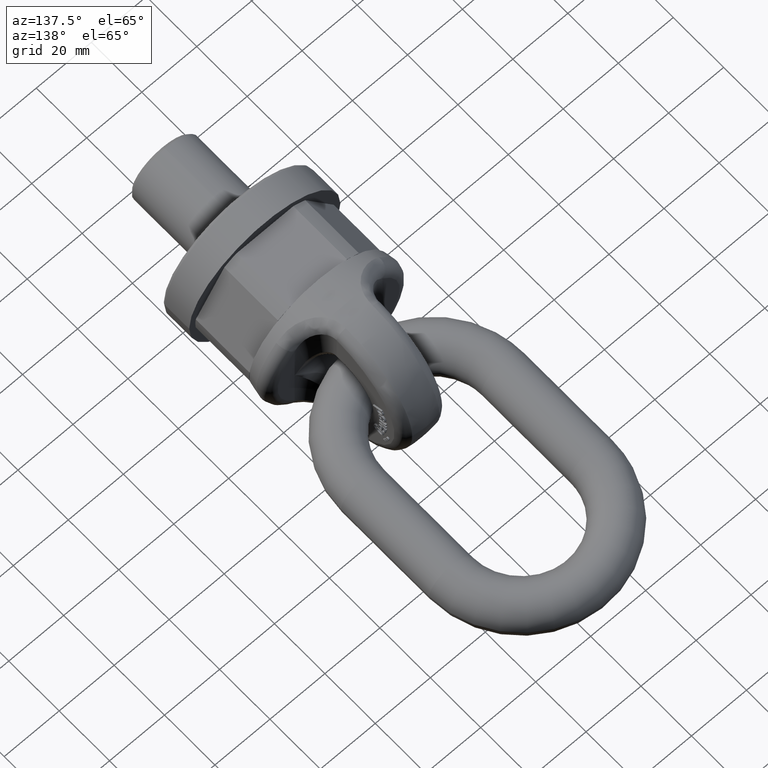
[diagram: clean part render]
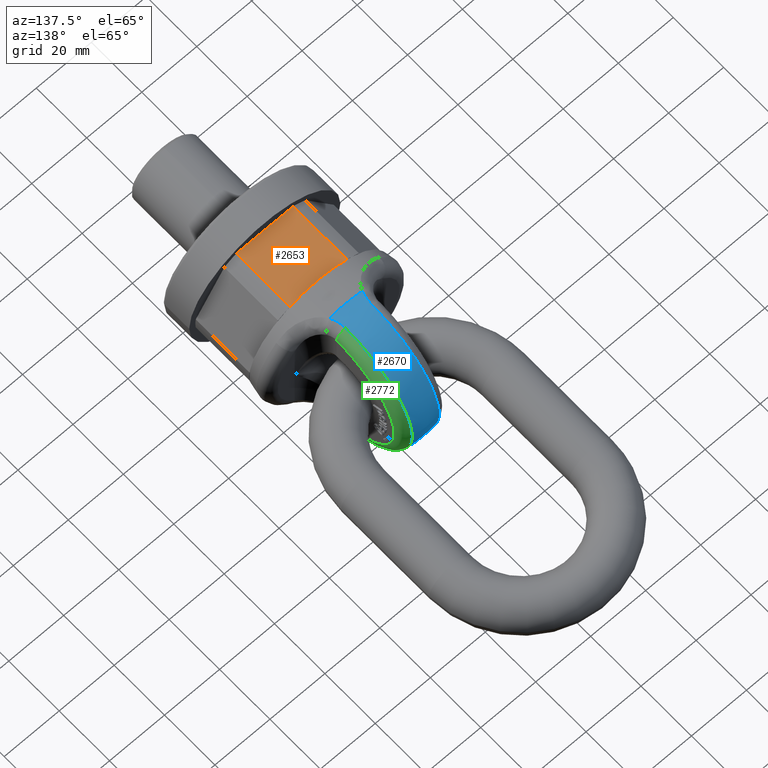
[diagram: same view with three faces highlighted in distinct colors, each labeled with its STEP entity id]
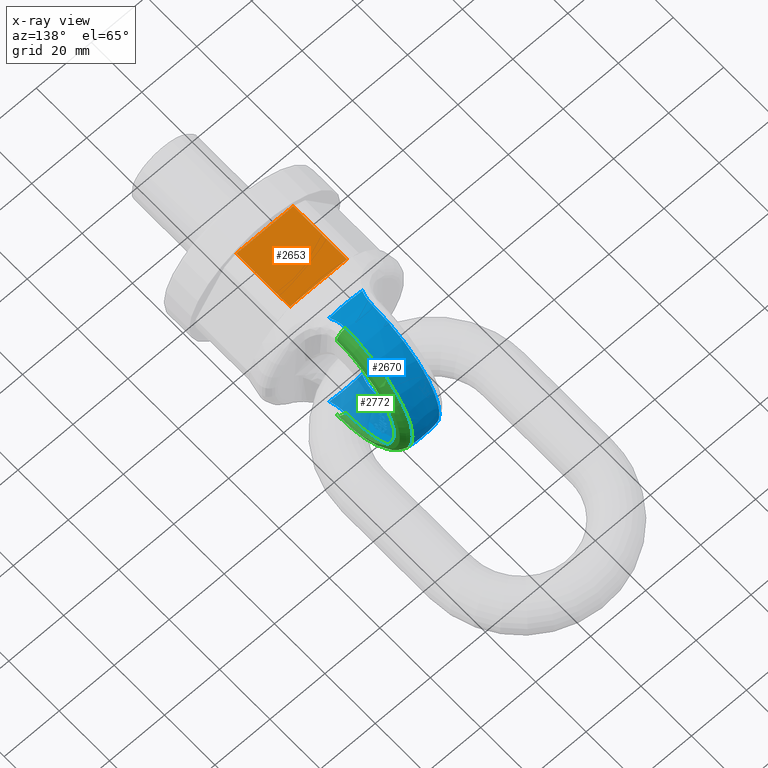
[diagram: x-ray of the same camera — body ghosted, the three highlighted faces saturated]
A machine part, auxiliary view with three faces highlighted in distinct colors.
The next image is the same camera in x-ray (body ghosted, the three faces saturated) — at least one of them is partly hidden behind the body in this view.
Their STEP definitions:

[orange] entity #2653 — the highlighted planar face has unit normal (0, 0, 1).
#1811=FACE_OUTER_BOUND('',#3076,.T.);
#2042=LINE('',#6582,#2298);
#2062=LINE('',#6635,#2318);
#2063=LINE('',#6637,#2319);
#2064=LINE('',#6639,#2320);
#2298=VECTOR('',#5822,1.);
#2318=VECTOR('',#5868,1.);
#2319=VECTOR('',#5869,1.);
#2320=VECTOR('',#5870,1.);
#2653=ADVANCED_FACE('',(#1811),#2895,.T.);
#2895=PLANE('',#5622);
#3076=EDGE_LOOP('',(#3388,#3389,#3390,#3391));
#3388=ORIENTED_EDGE('',*,*,#4972,.F.);
#3389=ORIENTED_EDGE('',*,*,#4946,.T.);
#3390=ORIENTED_EDGE('',*,*,#4973,.F.);
#3391=ORIENTED_EDGE('',*,*,#4974,.T.);
#4548=VERTEX_POINT('',#6581);
#4549=VERTEX_POINT('',#6583);
#4569=VERTEX_POINT('',#6636);
#4570=VERTEX_POINT('',#6638);
#4946=EDGE_CURVE('',#4549,#4548,#2042,.T.);
#4972=EDGE_CURVE('',#4549,#4569,#2062,.T.);
#4973=EDGE_CURVE('',#4570,#4548,#2063,.T.);
#4974=EDGE_CURVE('',#4570,#4569,#2064,.T.);
#5622=AXIS2_PLACEMENT_3D('',#6640,#5871,#5872);
#5822=DIRECTION('',(1.,4.11404784088564E-17,0.));
#5868=DIRECTION('',(-2.4492935982947E-17,1.,0.));
#5869=DIRECTION('',(2.4492935982947E-17,-1.,0.));
#5870=DIRECTION('',(-1.,0.,0.));
#5871=DIRECTION('',(0.,0.,1.));
#5872=DIRECTION('',(1.,0.,0.));
#6581=CARTESIAN_POINT('',(10.3712744314926,10.6666666666667,23.));
#6582=CARTESIAN_POINT('',(27.5,10.6666666666667,23.));
#6583=CARTESIAN_POINT('',(-10.3712744314926,10.6666666666667,23.));
#6635=CARTESIAN_POINT('',(-10.3712744314926,-2.54022960712125E-16,23.));
#6636=CARTESIAN_POINT('',(-10.3712744314926,32.,23.));
#6637=CARTESIAN_POINT('',(10.3712744314926,2.54022960712125E-16,23.));
#6638=CARTESIAN_POINT('',(10.3712744314926,32.,23.));
#6639=CARTESIAN_POINT('',(13.2790561913614,32.,23.));
#6640=CARTESIAN_POINT('',(13.2790561913614,32.,23.));

[blue] entity #2670 — the highlighted spherical surface has radius 27.5 mm.
#315=SPHERICAL_SURFACE('',#5660,27.5);
#361=B_SPLINE_CURVE_WITH_KNOTS('',3,(#7053,#7054,#7055,#7056),
 .UNSPECIFIED.,.F.,.F.,(4,4),(0.,1.),.UNSPECIFIED.);
#362=B_SPLINE_CURVE_WITH_KNOTS('',3,(#7060,#7061,#7062,#7063),
 .UNSPECIFIED.,.F.,.F.,(4,4),(0.,1.),.UNSPECIFIED.);
#363=B_SPLINE_CURVE_WITH_KNOTS('',3,(#7064,#7065,#7066,#7067),
 .UNSPECIFIED.,.F.,.F.,(4,4),(0.,1.),.UNSPECIFIED.);
#364=B_SPLINE_CURVE_WITH_KNOTS('',3,(#7071,#7072,#7073,#7074),
 .UNSPECIFIED.,.F.,.F.,(4,4),(0.,1.),.UNSPECIFIED.);
#1822=FACE_OUTER_BOUND('',#3106,.T.);
#2670=ADVANCED_FACE('',(#1822),#315,.T.);
#3106=EDGE_LOOP('',(#3530,#3531,#3532,#3533,#3534,#3535,#3536,#3537));
#3530=ORIENTED_EDGE('',*,*,#5068,.F.);
#3531=ORIENTED_EDGE('',*,*,#5075,.T.);
#3532=ORIENTED_EDGE('',*,*,#5076,.T.);
#3533=ORIENTED_EDGE('',*,*,#5077,.T.);
#3534=ORIENTED_EDGE('',*,*,#5072,.F.);
#3535=ORIENTED_EDGE('',*,*,#5078,.T.);
#3536=ORIENTED_EDGE('',*,*,#5079,.T.);
#3537=ORIENTED_EDGE('',*,*,#5080,.T.);
#4655=VERTEX_POINT('',#7023);
#4656=VERTEX_POINT('',#7025);
#4659=VERTEX_POINT('',#7041);
#4660=VERTEX_POINT('',#7043);
#4662=VERTEX_POINT('',#7057);
#4663=VERTEX_POINT('',#7059);
#4664=VERTEX_POINT('',#7068);
#4665=VERTEX_POINT('',#7070);
#5068=EDGE_CURVE('',#4655,#4656,#5562,.T.);
#5072=EDGE_CURVE('',#4659,#4660,#5564,.T.);
#5075=EDGE_CURVE('',#4655,#4662,#361,.T.);
#5076=EDGE_CURVE('',#4662,#4663,#5566,.T.);
#5077=EDGE_CURVE('',#4663,#4660,#362,.T.);
#5078=EDGE_CURVE('',#4659,#4664,#363,.T.);
#5079=EDGE_CURVE('',#4664,#4665,#5567,.T.);
#5080=EDGE_CURVE('',#4665,#4656,#364,.T.);
#5562=CIRCLE('',#5653,27.0988417924046);
#5564=CIRCLE('',#5655,27.0988417924046);
#5566=CIRCLE('',#5658,27.0561128212689);
#5567=CIRCLE('',#5659,27.0561128212689);
#5653=AXIS2_PLACEMENT_3D('',#7024,#5969,#5970);
#5655=AXIS2_PLACEMENT_3D('',#7042,#5973,#5974);
#5658=AXIS2_PLACEMENT_3D('',#7058,#5979,#5980);
#5659=AXIS2_PLACEMENT_3D('',#7069,#5981,#5982);
#5660=AXIS2_PLACEMENT_3D('',#7075,#5983,#5984);
#5969=DIRECTION('',(0.,-1.,0.));
#5970=DIRECTION('',(0.,0.,-1.));
#5973=DIRECTION('',(0.,-1.,0.));
#5974=DIRECTION('',(0.,0.,-1.));
#5979=DIRECTION('',(1.,2.47817639425258E-16,2.34291072916505E-15));
#5980=DIRECTION('',(2.56463075451569E-16,-1.,5.6946242266502E-31));
#5981=DIRECTION('',(-1.,2.47817639425258E-16,0.));
#5982=DIRECTION('',(-2.56463075451569E-16,-1.,0.));
#5983=DIRECTION('',(6.12323399573677E-17,-1.,0.));
#5984=DIRECTION('',(1.,0.,0.));
#7023=CARTESIAN_POINT('',(-5.97855748545769,42.8199600952318,-26.4311194784265));
#7024=CARTESIAN_POINT('',(0.,42.8199600952318,0.));
#7025=CARTESIAN_POINT('',(5.97855748545775,42.8199600952318,-26.4311194784264));
#7041=CARTESIAN_POINT('',(5.97855748545775,42.8199600952318,26.4311194784264));
#7042=CARTESIAN_POINT('',(0.,42.8199600952318,0.));
#7043=CARTESIAN_POINT('',(-5.97855748545781,42.8199600952318,26.4311194784264));
#7053=CARTESIAN_POINT('',(-5.97855748545769,42.8199600952318,-26.4311194784265));
#7054=CARTESIAN_POINT('',(-5.29234158646115,44.4572470475844,-26.8762443805993));
#7055=CARTESIAN_POINT('',(-4.92105263157888,46.248441643119,-27.0890961240213));
#7056=CARTESIAN_POINT('',(-4.92105263157888,48.0789473684211,-27.0499179470443));
#7057=CARTESIAN_POINT('',(-4.92105263157888,48.0789473684211,-27.0499179470443));
#7058=CARTESIAN_POINT('',(-4.92105263157894,47.5,-1.15295870093122E-14));
#7059=CARTESIAN_POINT('',(-4.92105263157901,48.0789473684211,27.0499179470443));
#7060=CARTESIAN_POINT('',(-4.92105263157901,48.0789473684211,27.0499179470443));
#7061=CARTESIAN_POINT('',(-4.92105263157901,46.2488443570525,27.0890875047651));
#7062=CARTESIAN_POINT('',(-5.29266197588806,44.4564826097028,26.8760365548807));
#7063=CARTESIAN_POINT('',(-5.97855748545781,42.8199600952318,26.4311194784264));
#7064=CARTESIAN_POINT('',(5.97855748545775,42.8199600952318,26.4311194784264));
#7065=CARTESIAN_POINT('',(5.29234158646121,44.4572470475844,26.8762443805993));
#7066=CARTESIAN_POINT('',(4.92105263157895,46.248441643119,27.0890961240213));
#7067=CARTESIAN_POINT('',(4.92105263157895,48.0789473684211,27.0499179470443));
#7068=CARTESIAN_POINT('',(4.92105263157894,48.0789473684211,27.0499179470443));
#7069=CARTESIAN_POINT('',(4.92105263157894,47.5,0.));
#7070=CARTESIAN_POINT('',(4.92105263157894,48.0789473684211,-27.0499179470443));
#7071=CARTESIAN_POINT('',(4.92105263157894,48.0789473684211,-27.0499179470443));
#7072=CARTESIAN_POINT('',(4.92105263157894,46.2488443570525,-27.0890875047651));
#7073=CARTESIAN_POINT('',(5.292661975888,44.4564826097028,-26.8760365548808));
#7074=CARTESIAN_POINT('',(5.97855748545775,42.8199600952318,-26.4311194784264));
#7075=CARTESIAN_POINT('',(0.,47.5,0.));

[green] entity #2772 — the highlighted toroidal blend (fillet) surface has major radius 23.3666 mm and minor (blend) radius 3.75 mm.
#1799=TOROIDAL_SURFACE('',#5725,23.3666428910958,3.75);
#1916=FACE_OUTER_BOUND('',#3216,.T.);
#2772=ADVANCED_FACE('',(#1916),#1799,.T.);
#3216=EDGE_LOOP('',(#3980,#3981,#3982,#3983));
#3980=ORIENTED_EDGE('',*,*,#5264,.T.);
#3981=ORIENTED_EDGE('',*,*,#5079,.F.);
#3982=ORIENTED_EDGE('',*,*,#5266,.F.);
#3983=ORIENTED_EDGE('',*,*,#5011,.F.);
#4598=VERTEX_POINT('',#6789);
#4601=VERTEX_POINT('',#6794);
#4664=VERTEX_POINT('',#7068);
#4665=VERTEX_POINT('',#7070);
#5011=EDGE_CURVE('',#4601,#4598,#5560,.T.);
#5079=EDGE_CURVE('',#4664,#4665,#5567,.T.);
#5264=EDGE_CURVE('',#4601,#4665,#5577,.T.);
#5266=EDGE_CURVE('',#4598,#4664,#5579,.T.);
#5560=CIRCLE('',#5648,23.3666428910958);
#5567=CIRCLE('',#5659,27.0561128212689);
#5577=CIRCLE('',#5722,3.75);
#5579=CIRCLE('',#5724,3.75);
#5648=AXIS2_PLACEMENT_3D('',#6795,#5931,#5932);
#5659=AXIS2_PLACEMENT_3D('',#7069,#5981,#5982);
#5722=AXIS2_PLACEMENT_3D('',#8118,#6233,#6234);
#5724=AXIS2_PLACEMENT_3D('',#8150,#6237,#6238);
#5725=AXIS2_PLACEMENT_3D('',#8151,#6239,#6240);
#5931=DIRECTION('',(1.,-2.47817639425258E-16,0.));
#5932=DIRECTION('',(2.22717933944783E-16,1.,0.));
#5981=DIRECTION('',(-1.,2.47817639425258E-16,0.));
#5982=DIRECTION('',(-2.56463075451569E-16,-1.,0.));
#6233=DIRECTION('',(0.,0.999771036058819,0.0213980246255459));
#6234=DIRECTION('',(0.,-0.0213980246255463,0.999771036058819));
#6237=DIRECTION('',(0.,-0.999771036058819,0.0213980246255459));
#6238=DIRECTION('',(0.,-0.0213980246255463,-0.999771036058819));
#6239=DIRECTION('',(1.,-2.47817639425258E-16,0.));
#6240=DIRECTION('',(2.55890595741323E-16,1.,0.));
#6789=CARTESIAN_POINT('',(8.,48.,23.3612927724473));
#6794=CARTESIAN_POINT('',(8.,48.,-23.3612927724473));
#6795=CARTESIAN_POINT('',(8.,47.5,0.));
#7068=CARTESIAN_POINT('',(4.92105263157894,48.0789473684211,27.0499179470443));
#7069=CARTESIAN_POINT('',(4.92105263157894,47.5,0.));
#7070=CARTESIAN_POINT('',(4.92105263157894,48.0789473684211,-27.0499179470443));
#8118=CARTESIAN_POINT('',(4.25,48.,-23.3612927724473));
#8150=CARTESIAN_POINT('',(4.25,48.,23.3612927724473));
#8151=CARTESIAN_POINT('',(4.25,47.5,0.));